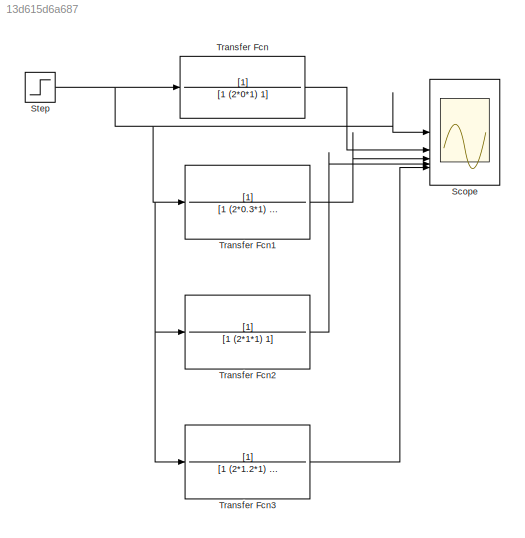
MODEL slx_13d615d6a687
KIND model
CONFIG AbsTol = auto
CONFIG EnableMultiTasking = off
CONFIG FixedStep = auto
CONFIG MaxStep = 1e-6
CONFIG MinStep = auto
CONFIG RelTol = auto
CONFIG SampleTimeConstraint = Unconstrained
CONFIG SolverName = VariableStepAuto
CONFIG StartTime = 0.0
CONFIG StopTime = 10.0
BLOCK [Scope] Scope
  Floating = off
  NumInputPorts = 5
  ScopeSpecificationString = Simulink.scopes.TimeScopeBlockCfg('CurrentConfiguration', extmgr.ConfigurationSet(extmgr.Configuration('Core','General UI',true),extmgr.Configuration('Core','Source UI',true),extmgr.Configuration('Sources','WiredSimulink',true),extmgr.Configuration('Visuals','Time Domain',true,'SerializedDisplays',{struct('MinYLimReal','-0.25','MaxYLimReal','2.24999','YLabelReal','','MinYLimMag','0.00000','MaxYLim...<+1438ch>
BLOCK [Step] Step
  SampleTime = 0
BLOCK [TransferFcn] Transfer Fcn
  Denominator = [1 (2*0*1) 1]
BLOCK [TransferFcn] Transfer Fcn1
  Denominator = [1 (2*0.3*1) 1]
BLOCK [TransferFcn] Transfer Fcn2
  Denominator = [1 (2*1*1) 1]
BLOCK [TransferFcn] Transfer Fcn3
  Denominator = [1 (2*1.2*1) 1]
NET Step:1 -> Scope:1, Transfer Fcn1:1, Transfer Fcn2:1, Transfer Fcn3:1, Transfer Fcn:1
LINE Transfer Fcn1:1 -> Scope:3
LINE Transfer Fcn2:1 -> Scope:4
LINE Transfer Fcn3:1 -> Scope:5
LINE Transfer Fcn:1 -> Scope:2
note: NET lines group one-source signal fan-out (src -> all destinations, sorted); 1:1 wires keep LINE
